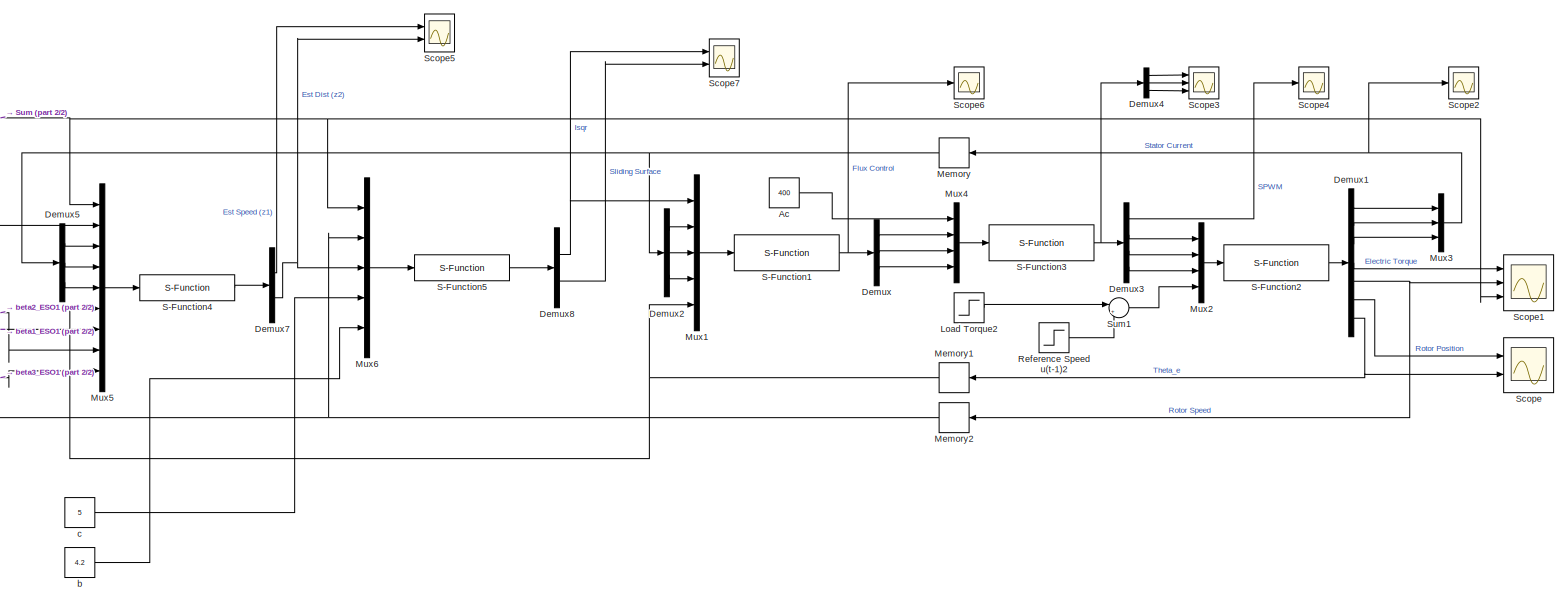
[diagram: root canvas - part 1/2, most of the canvas]
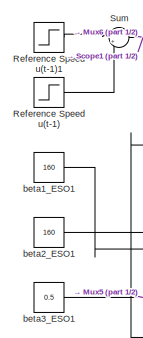
[diagram: root canvas - part 2/2, middle left region]
MODEL slx_66b41db3269d
KIND model
CONFIG AbsTol = auto
CONFIG EnableMultiTasking = off
CONFIG FixedStep = auto
CONFIG MaxStep = auto
CONFIG MinStep = auto
CONFIG RelTol = 1e-3
CONFIG SampleTimeConstraint = Unconstrained
CONFIG SolverName = FixedStepAuto
CONFIG StartTime = 0.0
CONFIG StopTime = 10.0
BLOCK [Constant] Ac
  Value = 400
BLOCK [Demux] Demux
  Outputs = 3
  Ports = [1, 3]
BLOCK [Demux] Demux1
  Outputs = 7
  Ports = [1, 7]
BLOCK [Demux] Demux2
  Outputs = 3
  Ports = [1, 3]
BLOCK [Demux] Demux3
  Ports = [1, 4]
BLOCK [Demux] Demux4
  Outputs = 3
  Ports = [1, 3]
BLOCK [Demux] Demux5
  Outputs = 3
  Ports = [1, 3]
BLOCK [Demux] Demux7
  Outputs = 2
  Ports = [1, 2]
BLOCK [Demux] Demux8
  Outputs = 2
  Ports = [1, 2]
BLOCK [Step] Load Torque2
  After = 0
  SampleTime = 0
  Time = 2
BLOCK [Memory] Memory
BLOCK [Memory] Memory1
BLOCK [Memory] Memory2
BLOCK [Mux] Mux1
  DisplayOption = bar
  Inputs = 5
  Ports = [5, 1]
BLOCK [Mux] Mux2
  DisplayOption = bar
  Ports = [4, 1]
BLOCK [Mux] Mux3
  DisplayOption = bar
  Inputs = 3
  Ports = [3, 1]
BLOCK [Mux] Mux4
  DisplayOption = bar
  Ports = [4, 1]
BLOCK [Mux] Mux5
  DisplayOption = bar
  Inputs = 9
  Ports = [9, 1]
BLOCK [Mux] Mux6
  DisplayOption = bar
  Inputs = 5
  Ports = [5, 1]
BLOCK [Step] Reference Speed u(t-1)
  After = -25
  SampleTime = 0
  Time = 5
BLOCK [Step] Reference Speed u(t-1)1
  After = 50
  SampleTime = 0
BLOCK [Step] Reference Speed u(t-1)2
  After = 0
  SampleTime = 0
BLOCK [S-Function] S-Function1
  EnableBusSupport = off
  FunctionName = FOC1
  Ports = [1, 1]
  SFcnIsStateOwnerBlock = off
  SFunctionDeploymentMode = off
BLOCK [S-Function] S-Function2
  EnableBusSupport = off
  FunctionName = PMSM
  Ports = [1, 1]
  SFcnIsStateOwnerBlock = off
  SFunctionDeploymentMode = off
BLOCK [S-Function] S-Function3
  EnableBusSupport = off
  FunctionName = SPWM2
  Ports = [1, 1]
  SFcnIsStateOwnerBlock = off
  SFunctionDeploymentMode = off
BLOCK [S-Function] S-Function4
  EnableBusSupport = off
  FunctionName = ESO_SMSC_VX
  Ports = [1, 1]
  SFcnIsStateOwnerBlock = off
  SFunctionDeploymentMode = off
BLOCK [S-Function] S-Function5
  EnableBusSupport = off
  FunctionName = SMSC3
  Ports = [1, 1]
  SFcnIsStateOwnerBlock = off
  SFunctionDeploymentMode = off
BLOCK [Scope] Scope
  Floating = off
  NumInputPorts = 2
  Ports = [2]
  ScopeSpecificationString = Simulink.scopes.TimeScopeBlockCfg('CurrentConfiguration', extmgr.ConfigurationSet(extmgr.Configuration('Core','General UI',true),extmgr.Configuration('Core','Source UI',true),extmgr.Configuration('Sources','WiredSimulink',true,'DataLoggingVariableName','ScopeData1'),extmgr.Configuration('Visuals','Time Domain',true,'SerializedDisplays',{struct('MinYLimReal','-162.45056','MaxYLimReal','1462.05507',...<+1499ch>
BLOCK [Scope] Scope1
  Floating = off
  NumInputPorts = 3
  Ports = [3]
  ScopeSpecificationString = Simulink.scopes.TimeScopeBlockCfg('CurrentConfiguration', extmgr.ConfigurationSet(extmgr.Configuration('Core','General UI',true),extmgr.Configuration('Core','Source UI',true),extmgr.Configuration('Sources','WiredSimulink',true,'DataLoggingVariableName','ScopeData2'),extmgr.Configuration('Visuals','Time Domain',true,'SerializedDisplays',{struct('MinYLimReal','-26.90314','MaxYLimReal','56.59403','YL...<+2130ch>
BLOCK [Scope] Scope2
  Floating = off
  NumInputPorts = 1
  Ports = [1]
  ScopeSpecificationString = Simulink.scopes.TimeScopeBlockCfg('CurrentConfiguration', extmgr.ConfigurationSet(extmgr.Configuration('Core','General UI',true),extmgr.Configuration('Core','Source UI',true),extmgr.Configuration('Sources','WiredSimulink',true,'DataLoggingVariableName','ScopeData3'),extmgr.Configuration('Visuals','Time Domain',true,'SerializedDisplays',{struct('MinYLimReal','-3.6742','MaxYLimReal','3.87867','YLabe...<+1521ch>
BLOCK [Scope] Scope3
  Floating = off
  NumInputPorts = 3
  Ports = [3]
  ScopeSpecificationString = Simulink.scopes.TimeScopeBlockCfg('CurrentConfiguration', extmgr.ConfigurationSet(extmgr.Configuration('Core','General UI',true),extmgr.Configuration('Core','Source UI',true),extmgr.Configuration('Sources','WiredSimulink',true,'DataLoggingVariableName','ScopeData4'),extmgr.Configuration('Visuals','Time Domain',true,'SerializedDisplays',{struct('MinYLimReal','-275.00000','MaxYLimReal','275.00000','...<+2861ch>
BLOCK [Scope] Scope4
  Floating = off
  NumInputPorts = 1
  Ports = [1]
  ScopeSpecificationString = Simulink.scopes.TimeScopeBlockCfg('CurrentConfiguration', extmgr.ConfigurationSet(extmgr.Configuration('Core','General UI',true),extmgr.Configuration('Core','Source UI',true),extmgr.Configuration('Sources','WiredSimulink',true,'DataLoggingVariableName','ScopeData5'),extmgr.Configuration('Visuals','Time Domain',true,'SerializedDisplays',{struct('MinYLimReal','-0.125','MaxYLimReal','1.125','YLabelRe...<+1485ch>
BLOCK [Scope] Scope5
  Floating = off
  NumInputPorts = 2
  Ports = [2]
  ScopeSpecificationString = Simulink.scopes.TimeScopeBlockCfg('CurrentConfiguration', extmgr.ConfigurationSet(extmgr.Configuration('Core','General UI',true),extmgr.Configuration('Core','Source UI',true),extmgr.Configuration('Sources','WiredSimulink',true,'DataLoggingVariableName','ScopeData1'),extmgr.Configuration('Visuals','Time Domain',true,'SerializedDisplays',{struct('MinYLimReal','-537.12315','MaxYLimReal','59.68035','Y...<+2156ch>
BLOCK [Scope] Scope6
  Floating = off
  NumInputPorts = 1
  Ports = [1]
  ScopeSpecificationString = Simulink.scopes.TimeScopeBlockCfg('CurrentConfiguration', extmgr.ConfigurationSet(extmgr.Configuration('Core','General UI',true),extmgr.Configuration('Core','Source UI',true),extmgr.Configuration('Sources','WiredSimulink',true),extmgr.Configuration('Visuals','Time Domain',true,'SerializedDisplays',{struct('MinYLimReal','-28.70629','MaxYLimReal','28.70629','YLabelReal','','MinYLimMag','0.00000','Ma...<+1495ch>
BLOCK [Scope] Scope7
  Floating = off
  NumInputPorts = 2
  Ports = [2]
  ScopeSpecificationString = Simulink.scopes.TimeScopeBlockCfg('CurrentConfiguration', extmgr.ConfigurationSet(extmgr.Configuration('Core','General UI',true),extmgr.Configuration('Core','Source UI',true),extmgr.Configuration('Sources','WiredSimulink',true,'DataLoggingVariableName','ScopeData2'),extmgr.Configuration('Visuals','Time Domain',true,'SerializedDisplays',{struct('MinYLimReal','-111.08472','MaxYLimReal','347.80392','...<+2178ch>
BLOCK [Sum] Sum
  Inputs = |++
  Ports = [2, 1]
BLOCK [Sum] Sum1
  Inputs = |++
  Ports = [2, 1]
BLOCK [Constant] b
  Value = 4.2
BLOCK [Constant] beta1_ESO1
  Value = 160
BLOCK [Constant] beta2_ESO1
  Value = 160
BLOCK [Constant] beta3_ESO1
  Value = 0.5
BLOCK [Constant] c
  Value = 5
LINE Ac:1 -> Mux4:1
LINE Demux1:1 -> Mux3:1
LINE Demux1:2 -> Mux3:2
LINE Demux1:3 -> Mux3:3
LINE Demux1:4 -> Scope1:1
NET Demux1:5 -> Memory2:1, Scope1:2
LINE Demux1:6 -> Scope:1
NET Demux1:7 -> Memory1:1, Scope:2
LINE Demux2:1 -> Mux1:2
LINE Demux2:2 -> Mux1:3
LINE Demux2:3 -> Mux1:4
LINE Demux3:1 -> Scope4:1
LINE Demux3:2 -> Mux2:1
LINE Demux3:3 -> Mux2:2
LINE Demux3:4 -> Mux2:3
LINE Demux4:1 -> Scope3:1
LINE Demux4:2 -> Scope3:2
LINE Demux4:3 -> Scope3:3
LINE Demux5:1 -> Mux5:3
LINE Demux5:2 -> Mux5:4
LINE Demux5:3 -> Mux5:5
LINE Demux7:1 -> Scope5:1
NET Demux7:2 -> Mux6:3, Scope5:2
NET Demux8:1 -> Mux1:1, Scope7:1
LINE Demux8:2 -> Scope7:2
LINE Demux:1 -> Mux4:2
LINE Demux:2 -> Mux4:3
LINE Demux:3 -> Mux4:4
LINE Load Torque2:1 -> Sum1:1
NET Memory1:1 -> Mux1:5, Mux5:6
NET Memory2:1 -> Mux5:2, Mux6:2
NET Memory:1 -> Demux2:1, Demux5:1
LINE Mux1:1 -> S-Function1:1
LINE Mux2:1 -> S-Function2:1
NET Mux3:1 -> Memory:1, Scope2:1
LINE Mux4:1 -> S-Function3:1
LINE Mux5:1 -> S-Function4:1
LINE Mux6:1 -> S-Function5:1
LINE Reference Speed u(t-1)1:1 -> Sum:1
LINE Reference Speed u(t-1)2:1 -> Sum1:2
LINE Reference Speed u(t-1):1 -> Sum:2
NET S-Function1:1 -> Demux:1, Scope6:1
LINE S-Function2:1 -> Demux1:1
NET S-Function3:1 -> Demux3:1, Demux4:1
LINE S-Function4:1 -> Demux7:1
LINE S-Function5:1 -> Demux8:1
LINE Sum1:1 -> Mux2:4
NET Sum:1 -> Mux5:1, Mux6:1, Scope1:3
LINE b:1 -> Mux6:5
LINE beta1_ESO1:1 -> Mux5:7
LINE beta2_ESO1:1 -> Mux5:8
LINE beta3_ESO1:1 -> Mux5:9
LINE c:1 -> Mux6:4
note: NET lines group one-source signal fan-out (src -> all destinations, sorted); 1:1 wires keep LINE
